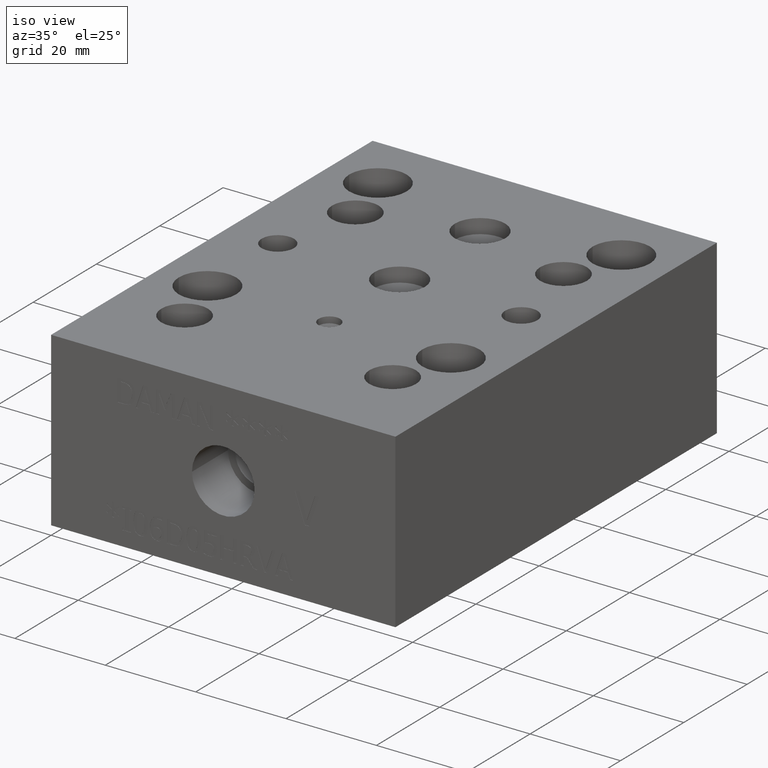
[diagram: clean part render]
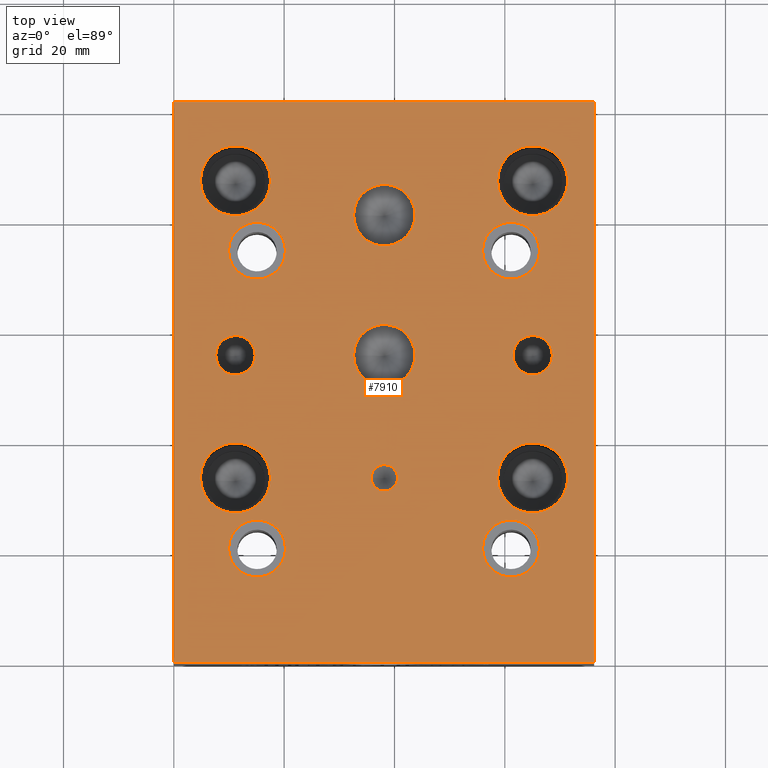
[diagram: tour spotlight — one face highlighted and labeled with its STEP entity id]
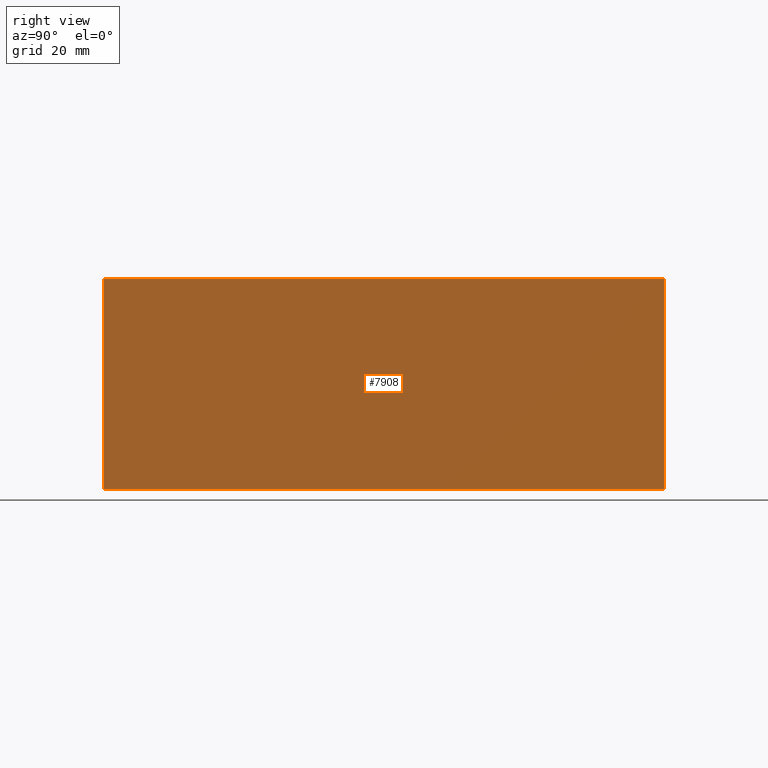
[diagram: tour spotlight — one face highlighted and labeled with its STEP entity id]
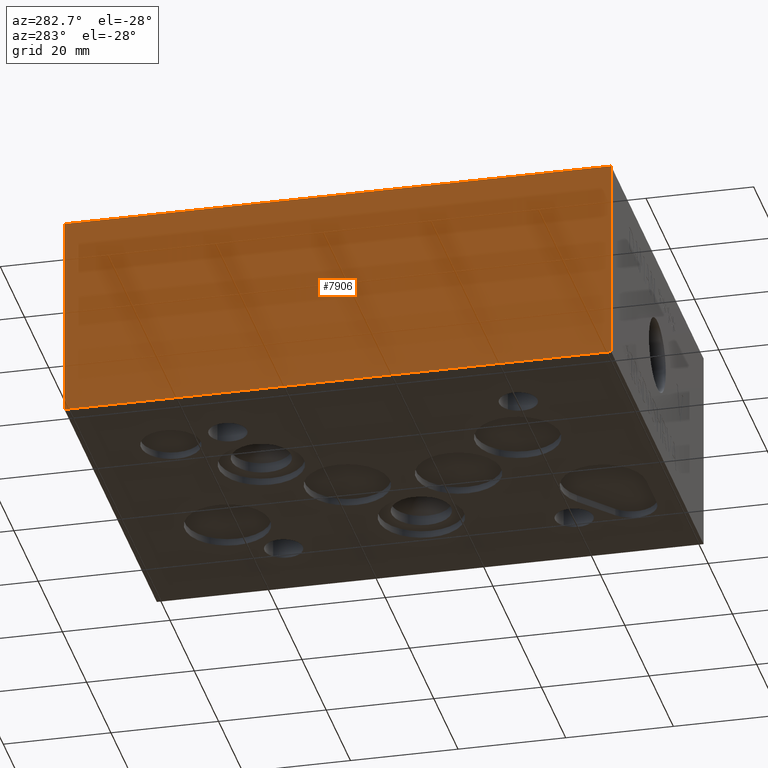
[diagram: tour spotlight — one face highlighted and labeled with its STEP entity id]
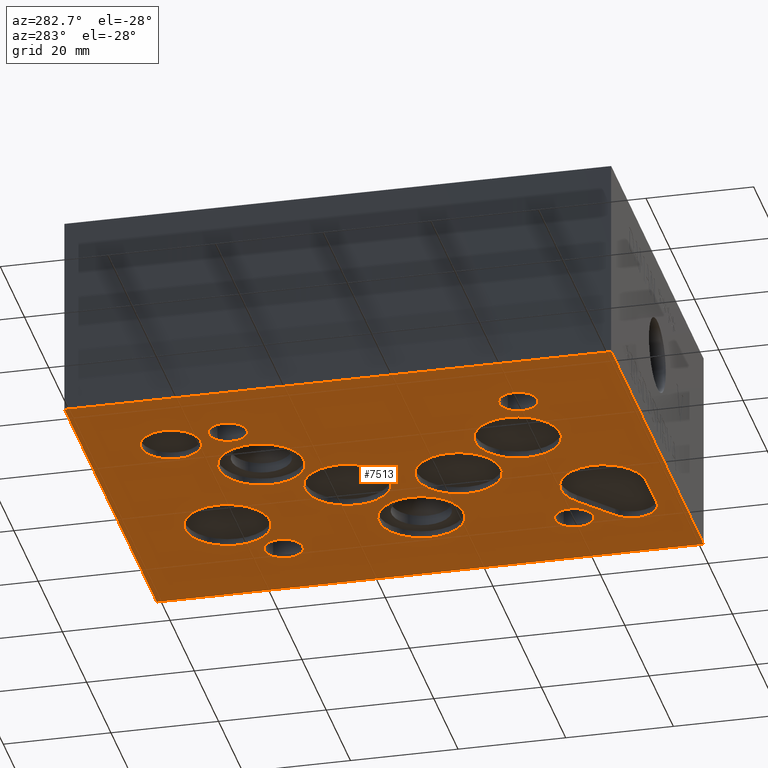
[diagram: tour spotlight — one face highlighted and labeled with its STEP entity id]
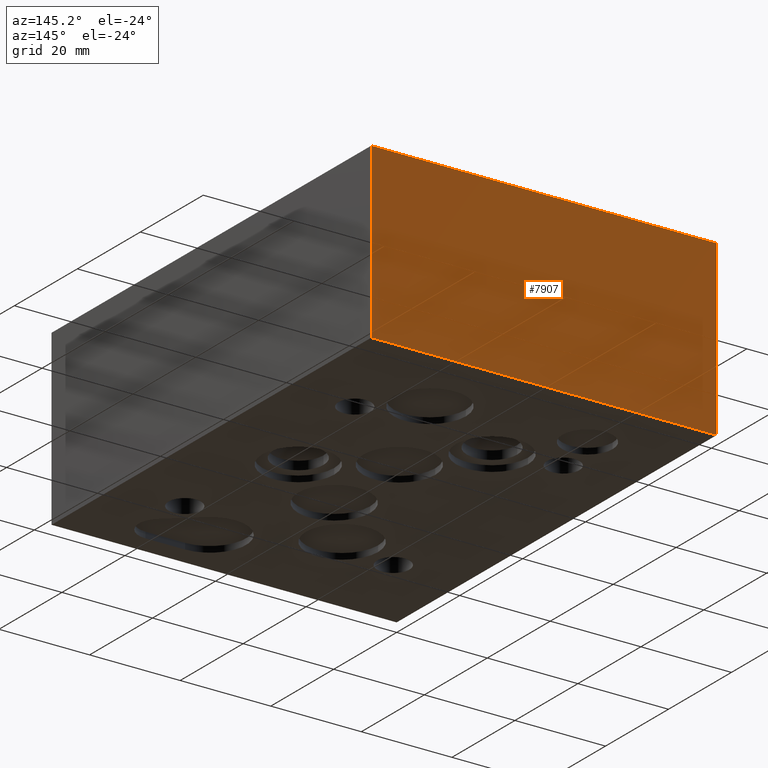
[diagram: tour spotlight — one face highlighted and labeled with its STEP entity id]
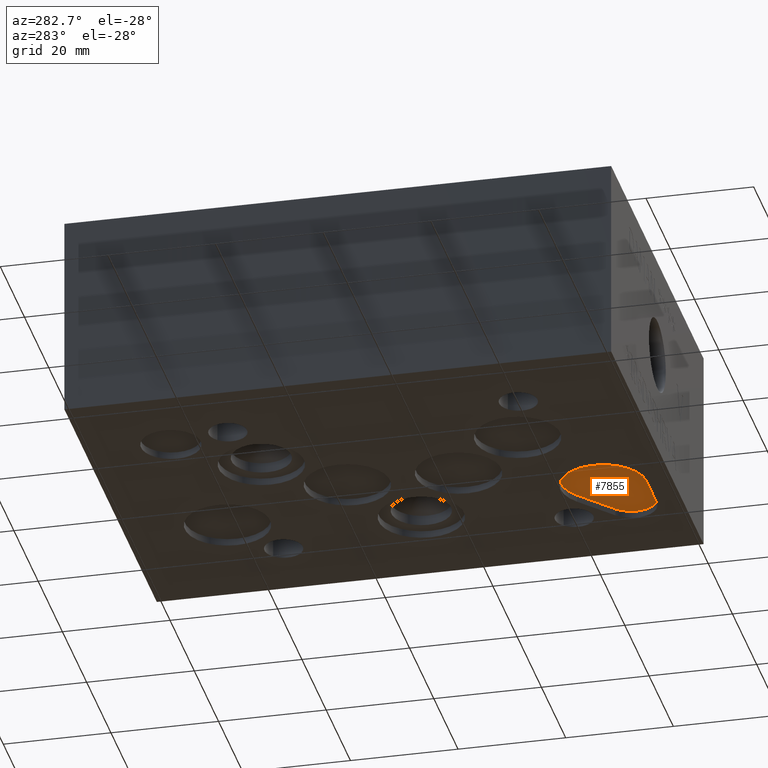
[diagram: tour spotlight — one face highlighted and labeled with its STEP entity id]
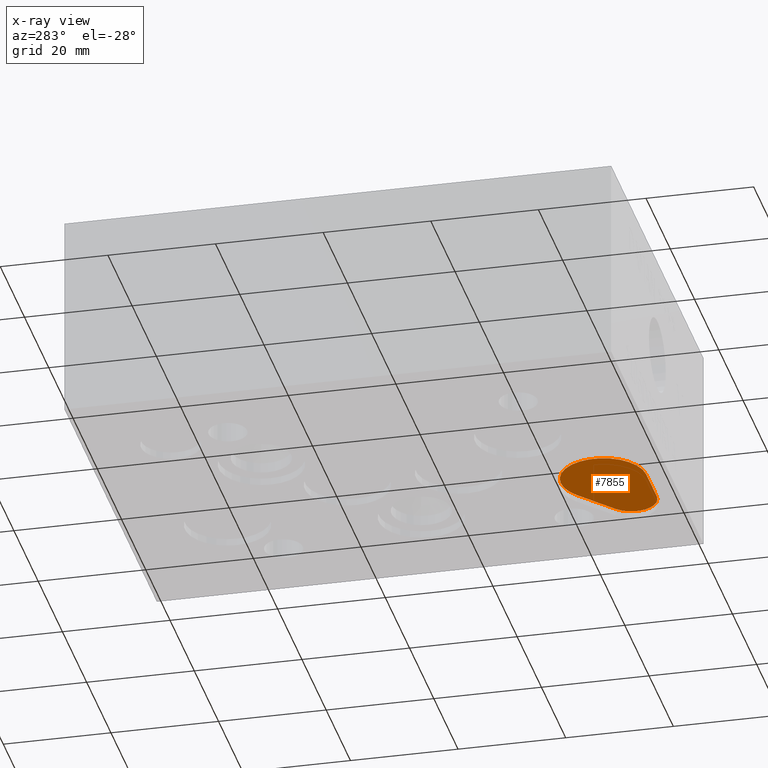
[diagram: x-ray of the same camera — body ghosted, this tour face saturated]
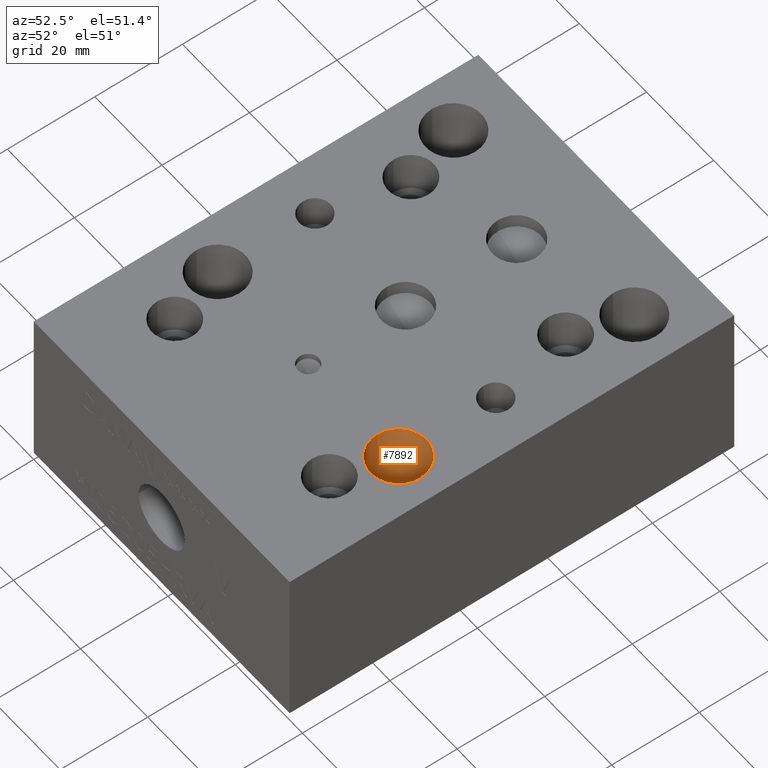
[diagram: tour spotlight — one face highlighted and labeled with its STEP entity id]
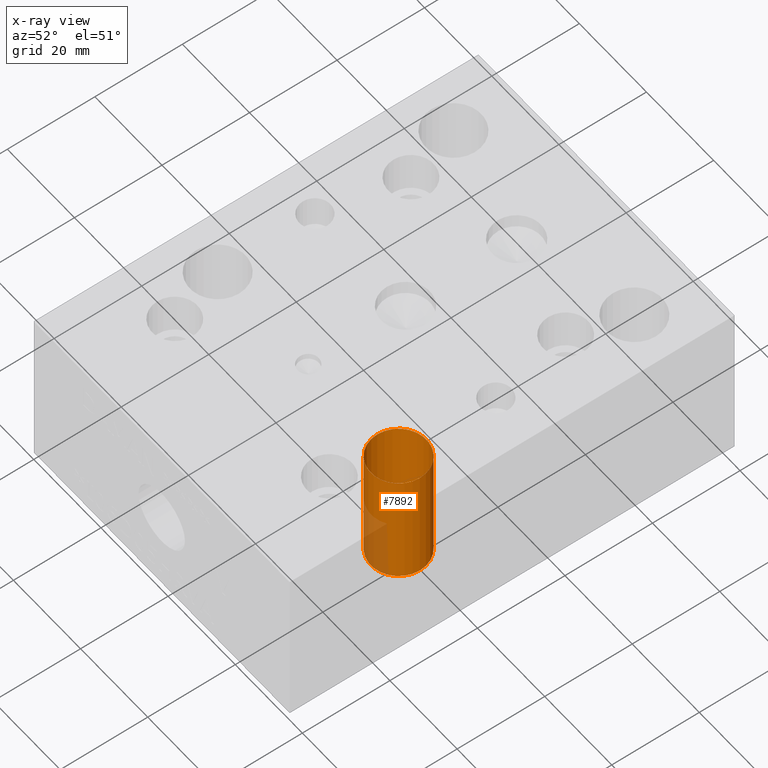
[diagram: x-ray of the same camera — body ghosted, this tour face saturated]
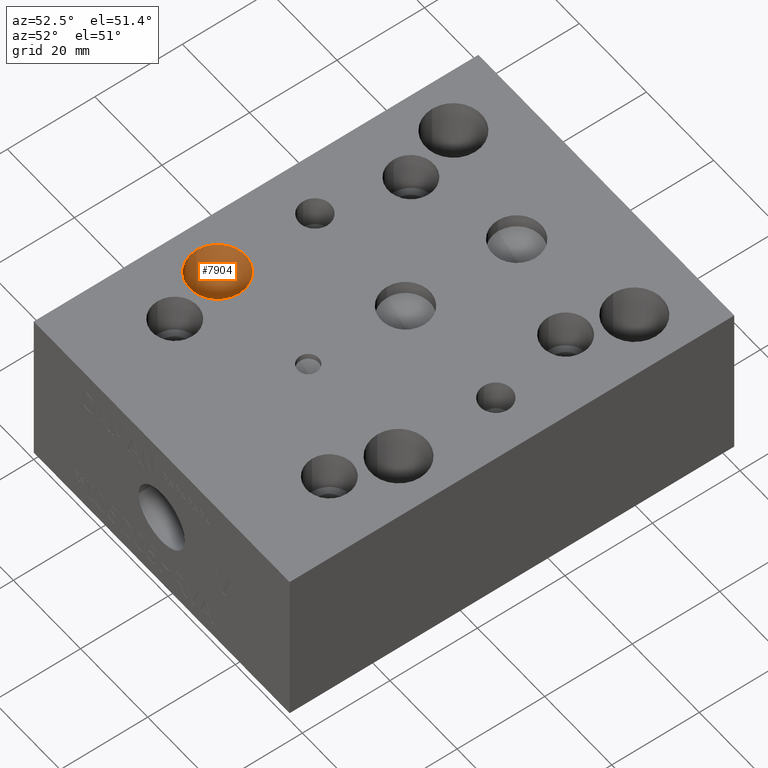
[diagram: tour spotlight — one face highlighted and labeled with its STEP entity id]
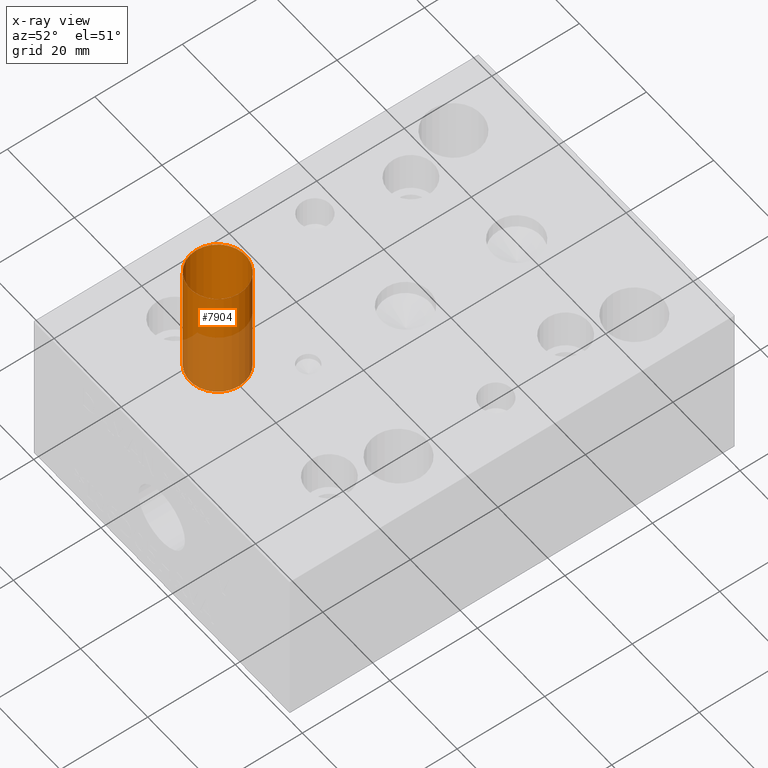
[diagram: x-ray of the same camera — body ghosted, this tour face saturated]
A machine part: a face-by-face anatomy tour. The part has 400 B-rep faces; the first image is the clean iso view, then the 8 largest visible faces are spotlighted one at a time (largest first), each with its STEP entity span.

Face 1 — top view, entity #7910. In plain terms, the highlighted planar face has unit normal (0, 0, 1).
Definition (entity closure, byte-faithful):
#634=FACE_BOUND('',#1664,.T.);
#635=FACE_BOUND('',#1665,.T.);
#636=FACE_BOUND('',#1666,.T.);
#637=FACE_BOUND('',#1667,.T.);
#638=FACE_BOUND('',#1668,.T.);
#639=FACE_BOUND('',#1669,.T.);
#640=FACE_BOUND('',#1670,.T.);
#641=FACE_BOUND('',#1671,.T.);
#642=FACE_BOUND('',#1672,.T.);
#643=FACE_BOUND('',#1673,.T.);
#644=FACE_BOUND('',#1674,.T.);
#645=FACE_BOUND('',#1675,.T.);
#646=FACE_BOUND('',#1676,.T.);
#707=CIRCLE('',#8265,5.1562);
#708=CIRCLE('',#8266,5.1562);
#712=CIRCLE('',#8273,5.1562);
#713=CIRCLE('',#8274,5.1562);
#717=CIRCLE('',#8281,5.1562);
#718=CIRCLE('',#8282,5.1562);
#722=CIRCLE('',#8289,5.1562);
#723=CIRCLE('',#8290,5.1562);
#726=CIRCLE('',#8296,2.3876);
#727=CIRCLE('',#8297,2.3876);
#730=CIRCLE('',#8302,5.5626);
#731=CIRCLE('',#8303,5.5626);
#734=CIRCLE('',#8308,5.5626);
#735=CIRCLE('',#8309,5.5626);
#738=CIRCLE('',#8314,3.5687);
#739=CIRCLE('',#8315,3.5687);
#742=CIRCLE('',#8320,3.5687);
#743=CIRCLE('',#8321,3.5687);
#749=CIRCLE('',#8330,6.35);
#750=CIRCLE('',#8331,6.35);
#756=CIRCLE('',#8341,6.35);
#757=CIRCLE('',#8342,6.35);
#763=CIRCLE('',#8352,6.35);
#764=CIRCLE('',#8353,6.35);
#770=CIRCLE('',#8363,6.35);
#771=CIRCLE('',#8364,6.35);
#1209=FACE_OUTER_BOUND('',#1663,.T.);
#1663=EDGE_LOOP('',(#7210,#7211,#7212,#7213));
#1664=EDGE_LOOP('',(#7214,#7215));
#1665=EDGE_LOOP('',(#7216,#7217));
#1666=EDGE_LOOP('',(#7218,#7219));
#1667=EDGE_LOOP('',(#7220,#7221));
#1668=EDGE_LOOP('',(#7222,#7223));
#1669=EDGE_LOOP('',(#7224,#7225));
#1670=EDGE_LOOP('',(#7226,#7227));
#1671=EDGE_LOOP('',(#7228,#7229));
#1672=EDGE_LOOP('',(#7230,#7231));
#1673=EDGE_LOOP('',(#7232,#7233));
#1674=EDGE_LOOP('',(#7234,#7235));
#1675=EDGE_LOOP('',(#7236,#7237));
#1676=EDGE_LOOP('',(#7238,#7239));
#2019=LINE('',#12018,#2814);
#2467=LINE('',#13295,#3262);
#2469=LINE('',#13299,#3264);
#2471=LINE('',#13302,#3266);
#2814=VECTOR('',#8973,10.);
#3262=VECTOR('',#10047,10.);
#3264=VECTOR('',#10051,10.);
#3266=VECTOR('',#10055,10.);
#3615=VERTEX_POINT('',#12015);
#3616=VERTEX_POINT('',#12017);
#3933=VERTEX_POINT('',#13095);
#3934=VERTEX_POINT('',#13096);
#3937=VERTEX_POINT('',#13108);
#3938=VERTEX_POINT('',#13109);
#3941=VERTEX_POINT('',#13121);
#3942=VERTEX_POINT('',#13122);
#3945=VERTEX_POINT('',#13134);
#3946=VERTEX_POINT('',#13135);
#3950=VERTEX_POINT('',#13148);
#3951=VERTEX_POINT('',#13149);
#3955=VERTEX_POINT('',#13161);
#3956=VERTEX_POINT('',#13162);
#3960=VERTEX_POINT('',#13174);
#3961=VERTEX_POINT('',#13175);
#3965=VERTEX_POINT('',#13187);
#3966=VERTEX_POINT('',#13188);
#3970=VERTEX_POINT('',#13200);
#3971=VERTEX_POINT('',#13201);
#3978=VERTEX_POINT('',#13220);
#3979=VERTEX_POINT('',#13221);
#3986=VERTEX_POINT('',#13242);
#3987=VERTEX_POINT('',#13243);
#3994=VERTEX_POINT('',#13264);
#3995=VERTEX_POINT('',#13265);
#4002=VERTEX_POINT('',#13286);
#4003=VERTEX_POINT('',#13287);
#4004=VERTEX_POINT('',#13294);
#4005=VERTEX_POINT('',#13298);
#4516=EDGE_CURVE('',#3616,#3615,#2019,.T.);
#4988=EDGE_CURVE('',#3933,#3934,#707,.T.);
#4989=EDGE_CURVE('',#3934,#3933,#708,.T.);
#4994=EDGE_CURVE('',#3937,#3938,#712,.T.);
#4995=EDGE_CURVE('',#3938,#3937,#713,.T.);
#5000=EDGE_CURVE('',#3941,#3942,#717,.T.);
#5001=EDGE_CURVE('',#3942,#3941,#718,.T.);
#5006=EDGE_CURVE('',#3945,#3946,#722,.T.);
#5007=EDGE_CURVE('',#3946,#3945,#723,.T.);
#5012=EDGE_CURVE('',#3950,#3951,#726,.T.);
#5013=EDGE_CURVE('',#3951,#3950,#727,.T.);
#5018=EDGE_CURVE('',#3955,#3956,#730,.T.);
#5019=EDGE_CURVE('',#3956,#3955,#731,.T.);
#5024=EDGE_CURVE('',#3960,#3961,#734,.T.);
#5025=EDGE_CURVE('',#3961,#3960,#735,.T.);
#5030=EDGE_CURVE('',#3965,#3966,#738,.T.);
#5031=EDGE_CURVE('',#3966,#3965,#739,.T.);
#5036=EDGE_CURVE('',#3970,#3971,#742,.T.);
#5037=EDGE_CURVE('',#3971,#3970,#743,.T.);
#5045=EDGE_CURVE('',#3978,#3979,#749,.T.);
#5046=EDGE_CURVE('',#3979,#3978,#750,.T.);
#5055=EDGE_CURVE('',#3986,#3987,#756,.T.);
#5056=EDGE_CURVE('',#3987,#3986,#757,.T.);
#5065=EDGE_CURVE('',#3994,#3995,#763,.T.);
#5066=EDGE_CURVE('',#3995,#3994,#764,.T.);
#5075=EDGE_CURVE('',#4002,#4003,#770,.T.);
#5076=EDGE_CURVE('',#4003,#4002,#771,.T.);
#5079=EDGE_CURVE('',#4004,#3616,#2467,.T.);
#5081=EDGE_CURVE('',#4005,#4004,#2469,.T.);
#5083=EDGE_CURVE('',#3615,#4005,#2471,.T.);
#7210=ORIENTED_EDGE('',*,*,#4516,.T.);
#7211=ORIENTED_EDGE('',*,*,#5083,.T.);
#7212=ORIENTED_EDGE('',*,*,#5081,.T.);
#7213=ORIENTED_EDGE('',*,*,#5079,.T.);
#7214=ORIENTED_EDGE('',*,*,#4988,.T.);
#7215=ORIENTED_EDGE('',*,*,#4989,.T.);
#7216=ORIENTED_EDGE('',*,*,#4994,.T.);
#7217=ORIENTED_EDGE('',*,*,#4995,.T.);
#7218=ORIENTED_EDGE('',*,*,#5000,.T.);
#7219=ORIENTED_EDGE('',*,*,#5001,.T.);
#7220=ORIENTED_EDGE('',*,*,#5006,.T.);
#7221=ORIENTED_EDGE('',*,*,#5007,.T.);
#7222=ORIENTED_EDGE('',*,*,#5012,.T.);
#7223=ORIENTED_EDGE('',*,*,#5013,.T.);
#7224=ORIENTED_EDGE('',*,*,#5018,.T.);
#7225=ORIENTED_EDGE('',*,*,#5019,.T.);
#7226=ORIENTED_EDGE('',*,*,#5024,.T.);
#7227=ORIENTED_EDGE('',*,*,#5025,.T.);
#7228=ORIENTED_EDGE('',*,*,#5030,.T.);
#7229=ORIENTED_EDGE('',*,*,#5031,.T.);
#7230=ORIENTED_EDGE('',*,*,#5036,.T.);
#7231=ORIENTED_EDGE('',*,*,#5037,.T.);
#7232=ORIENTED_EDGE('',*,*,#5045,.T.);
#7233=ORIENTED_EDGE('',*,*,#5046,.T.);
#7234=ORIENTED_EDGE('',*,*,#5055,.T.);
#7235=ORIENTED_EDGE('',*,*,#5056,.T.);
#7236=ORIENTED_EDGE('',*,*,#5065,.T.);
#7237=ORIENTED_EDGE('',*,*,#5066,.T.);
#7238=ORIENTED_EDGE('',*,*,#5075,.T.);
#7239=ORIENTED_EDGE('',*,*,#5076,.T.);
#7510=PLANE('',#8370);
#7910=ADVANCED_FACE('',(#1209,#634,#635,#636,#637,#638,#639,#640,#641,#642,
#643,#644,#645,#646),#7510,.T.);
#8265=AXIS2_PLACEMENT_3D('',#13097,#9817,#9818);
#8266=AXIS2_PLACEMENT_3D('',#13098,#9819,#9820);
#8273=AXIS2_PLACEMENT_3D('',#13110,#9834,#9835);
#8274=AXIS2_PLACEMENT_3D('',#13111,#9836,#9837);
#8281=AXIS2_PLACEMENT_3D('',#13123,#9851,#9852);
#8282=AXIS2_PLACEMENT_3D('',#13124,#9853,#9854);
#8289=AXIS2_PLACEMENT_3D('',#13136,#9868,#9869);
#8290=AXIS2_PLACEMENT_3D('',#13137,#9870,#9871);
#8296=AXIS2_PLACEMENT_3D('',#13150,#9884,#9885);
#8297=AXIS2_PLACEMENT_3D('',#13151,#9886,#9887);
#8302=AXIS2_PLACEMENT_3D('',#13163,#9898,#9899);
#8303=AXIS2_PLACEMENT_3D('',#13164,#9900,#9901);
#8308=AXIS2_PLACEMENT_3D('',#13176,#9912,#9913);
#8309=AXIS2_PLACEMENT_3D('',#13177,#9914,#9915);
#8314=AXIS2_PLACEMENT_3D('',#13189,#9926,#9927);
#8315=AXIS2_PLACEMENT_3D('',#13190,#9928,#9929);
#8320=AXIS2_PLACEMENT_3D('',#13202,#9940,#9941);
#8321=AXIS2_PLACEMENT_3D('',#13203,#9942,#9943);
#8330=AXIS2_PLACEMENT_3D('',#13222,#9962,#9963);
#8331=AXIS2_PLACEMENT_3D('',#13223,#9964,#9965);
#8341=AXIS2_PLACEMENT_3D('',#13244,#9987,#9988);
#8342=AXIS2_PLACEMENT_3D('',#13245,#9989,#9990);
#8352=AXIS2_PLACEMENT_3D('',#13266,#10012,#10013);
#8353=AXIS2_PLACEMENT_3D('',#13267,#10014,#10015);
#8363=AXIS2_PLACEMENT_3D('',#13288,#10037,#10038);
#8364=AXIS2_PLACEMENT_3D('',#13289,#10039,#10040);
#8370=AXIS2_PLACEMENT_3D('',#13304,#10058,#10059);
#8973=DIRECTION('',(1.,0.,0.));
#9817=DIRECTION('center_axis',(0.,0.,-1.));
#9818=DIRECTION('ref_axis',(1.,0.,0.));
#9819=DIRECTION('center_axis',(0.,0.,-1.));
#9820=DIRECTION('ref_axis',(1.,0.,0.));
#9834=DIRECTION('center_axis',(0.,0.,-1.));
#9835=DIRECTION('ref_axis',(1.,0.,0.));
#9836=DIRECTION('center_axis',(0.,0.,-1.));
#9837=DIRECTION('ref_axis',(1.,0.,0.));
#9851=DIRECTION('center_axis',(0.,0.,-1.));
#9852=DIRECTION('ref_axis',(1.,0.,0.));
#9853=DIRECTION('center_axis',(0.,0.,-1.));
#9854=DIRECTION('ref_axis',(1.,0.,0.));
#9868=DIRECTION('center_axis',(0.,0.,-1.));
#9869=DIRECTION('ref_axis',(1.,0.,0.));
#9870=DIRECTION('center_axis',(0.,0.,-1.));
#9871=DIRECTION('ref_axis',(1.,0.,0.));
#9884=DIRECTION('center_axis',(0.,0.,-1.));
#9885=DIRECTION('ref_axis',(1.,0.,0.));
#9886=DIRECTION('center_axis',(0.,0.,-1.));
#9887=DIRECTION('ref_axis',(1.,0.,0.));
#9898=DIRECTION('center_axis',(0.,0.,-1.));
#9899=DIRECTION('ref_axis',(1.,0.,0.));
#9900=DIRECTION('center_axis',(0.,0.,-1.));
#9901=DIRECTION('ref_axis',(1.,0.,0.));
#9912=DIRECTION('center_axis',(0.,0.,-1.));
#9913=DIRECTION('ref_axis',(1.,0.,0.));
#9914=DIRECTION('center_axis',(0.,0.,-1.));
#9915=DIRECTION('ref_axis',(1.,0.,0.));
#9926=DIRECTION('center_axis',(0.,0.,-1.));
#9927=DIRECTION('ref_axis',(1.,0.,0.));
#9928=DIRECTION('center_axis',(0.,0.,-1.));
#9929=DIRECTION('ref_axis',(1.,0.,0.));
#9940=DIRECTION('center_axis',(0.,0.,-1.));
#9941=DIRECTION('ref_axis',(1.,0.,0.));
#9942=DIRECTION('center_axis',(0.,0.,-1.));
#9943=DIRECTION('ref_axis',(1.,0.,0.));
#9962=DIRECTION('center_axis',(0.,0.,-1.));
#9963=DIRECTION('ref_axis',(1.,0.,0.));
#9964=DIRECTION('center_axis',(0.,0.,-1.));
#9965=DIRECTION('ref_axis',(1.,0.,0.));
#9987=DIRECTION('center_axis',(0.,0.,-1.));
#9988=DIRECTION('ref_axis',(1.,0.,0.));
#9989=DIRECTION('center_axis',(0.,0.,-1.));
#9990=DIRECTION('ref_axis',(1.,0.,0.));
#10012=DIRECTION('center_axis',(0.,0.,-1.));
#10013=DIRECTION('ref_axis',(1.,0.,0.));
#10014=DIRECTION('center_axis',(0.,0.,-1.));
#10015=DIRECTION('ref_axis',(1.,0.,0.));
#10037=DIRECTION('center_axis',(0.,0.,-1.));
#10038=DIRECTION('ref_axis',(1.,0.,0.));
#10039=DIRECTION('center_axis',(0.,0.,-1.));
#10040=DIRECTION('ref_axis',(1.,0.,0.));
#10047=DIRECTION('',(0.,-1.,0.));
#10051=DIRECTION('',(-1.,0.,0.));
#10055=DIRECTION('',(0.,1.,0.));
#10058=DIRECTION('center_axis',(0.,0.,1.));
#10059=DIRECTION('ref_axis',(1.,0.,0.));
#12015=CARTESIAN_POINT('',(76.2,0.,38.1));
#12017=CARTESIAN_POINT('',(0.,0.,38.1));
#12018=CARTESIAN_POINT('',(0.,0.,38.1));
#13095=CARTESIAN_POINT('',(20.2311,74.6252,38.1));
#13096=CARTESIAN_POINT('',(9.9187,74.6252,38.1));
#13097=CARTESIAN_POINT('Origin',(15.0749,74.6252,38.1));
#13098=CARTESIAN_POINT('Origin',(15.0749,74.6252,38.1));
#13108=CARTESIAN_POINT('',(20.2438,20.6502,38.1));
#13109=CARTESIAN_POINT('',(9.9314,20.6502,38.1));
#13110=CARTESIAN_POINT('Origin',(15.0876,20.6502,38.1));
#13111=CARTESIAN_POINT('Origin',(15.0876,20.6502,38.1));
#13121=CARTESIAN_POINT('',(66.2813,20.6502,38.1));
#13122=CARTESIAN_POINT('',(55.9689,20.6502,38.1));
#13123=CARTESIAN_POINT('Origin',(61.1251,20.6502,38.1));
#13124=CARTESIAN_POINT('Origin',(61.1251,20.6502,38.1));
#13134=CARTESIAN_POINT('',(66.2813,74.6379,38.1));
#13135=CARTESIAN_POINT('',(55.9689,74.6379,38.1));
#13136=CARTESIAN_POINT('Origin',(61.1251,74.6379,38.1));
#13137=CARTESIAN_POINT('Origin',(61.1251,74.6379,38.1));
#13148=CARTESIAN_POINT('',(40.5384,33.4518,38.1));
#13149=CARTESIAN_POINT('',(35.7632,33.4518,38.1));
#13150=CARTESIAN_POINT('Origin',(38.1508,33.4518,38.1));
#13151=CARTESIAN_POINT('Origin',(38.1508,33.4518,38.1));
#13161=CARTESIAN_POINT('',(43.7134,55.6768,38.1));
#13162=CARTESIAN_POINT('',(32.5882,55.6768,38.1));
#13163=CARTESIAN_POINT('Origin',(38.1508,55.6768,38.1));
#13164=CARTESIAN_POINT('Origin',(38.1508,55.6768,38.1));
#13174=CARTESIAN_POINT('',(43.7134,81.0768,38.1));
#13175=CARTESIAN_POINT('',(32.5882,81.0768,38.1));
#13176=CARTESIAN_POINT('Origin',(38.1508,81.0768,38.1));
#13177=CARTESIAN_POINT('Origin',(38.1508,81.0768,38.1));
#13187=CARTESIAN_POINT('',(14.7447,55.6768,38.1));
#13188=CARTESIAN_POINT('',(7.6073,55.6768,38.1));
#13189=CARTESIAN_POINT('Origin',(11.176,55.6768,38.1));
#13190=CARTESIAN_POINT('Origin',(11.176,55.6768,38.1));
#13200=CARTESIAN_POINT('',(68.6181,55.6768,38.1));
#13201=CARTESIAN_POINT('',(61.4807,55.6768,38.1));
#13202=CARTESIAN_POINT('Origin',(65.0494,55.6768,38.1));
#13203=CARTESIAN_POINT('Origin',(65.0494,55.6768,38.1));
#13220=CARTESIAN_POINT('',(71.3994,33.4518,38.1));
#13221=CARTESIAN_POINT('',(58.6994,33.4518,38.1));
#13222=CARTESIAN_POINT('Origin',(65.0494,33.4518,38.1));
#13223=CARTESIAN_POINT('Origin',(65.0494,33.4518,38.1));
#13242=CARTESIAN_POINT('',(17.526,87.3252,38.1));
#13243=CARTESIAN_POINT('',(4.826,87.3252,38.1));
#13244=CARTESIAN_POINT('Origin',(11.176,87.3252,38.1));
#13245=CARTESIAN_POINT('Origin',(11.176,87.3252,38.1));
#13264=CARTESIAN_POINT('',(71.3994,87.3252,38.1));
#13265=CARTESIAN_POINT('',(58.6994,87.3252,38.1));
#13266=CARTESIAN_POINT('Origin',(65.0494,87.3252,38.1));
#13267=CARTESIAN_POINT('Origin',(65.0494,87.3252,38.1));
#13286=CARTESIAN_POINT('',(17.526,33.4518,38.1));
#13287=CARTESIAN_POINT('',(4.826,33.4518,38.1));
#13288=CARTESIAN_POINT('Origin',(11.176,33.4518,38.1));
#13289=CARTESIAN_POINT('Origin',(11.176,33.4518,38.1));
#13294=CARTESIAN_POINT('',(0.,101.6,38.1));
#13295=CARTESIAN_POINT('',(0.,101.6,38.1));
#13298=CARTESIAN_POINT('',(76.2,101.6,38.1));
#13299=CARTESIAN_POINT('',(76.2,101.6,38.1));
#13302=CARTESIAN_POINT('',(76.2,0.,38.1));
#13304=CARTESIAN_POINT('Origin',(38.1,50.8,38.1));

Face 2 — right view, entity #7908. In plain terms, the highlighted planar face has unit normal (1, 0, 0).
Definition (entity closure, byte-faithful):
#1207=FACE_OUTER_BOUND('',#1661,.T.);
#1661=EDGE_LOOP('',(#7203,#7204,#7205,#7206));
#1685=LINE('',#10084,#2480);
#2018=LINE('',#12016,#2813);
#2470=LINE('',#13300,#3265);
#2471=LINE('',#13302,#3266);
#2480=VECTOR('',#8391,10.);
#2813=VECTOR('',#8972,10.);
#3265=VECTOR('',#10052,10.);
#3266=VECTOR('',#10055,10.);
#3274=VERTEX_POINT('',#10078);
#3276=VERTEX_POINT('',#10082);
#3615=VERTEX_POINT('',#12015);
#4005=VERTEX_POINT('',#13298);
#4016=EDGE_CURVE('',#3274,#3276,#1685,.T.);
#4515=EDGE_CURVE('',#3274,#3615,#2018,.T.);
#5082=EDGE_CURVE('',#3276,#4005,#2470,.T.);
#5083=EDGE_CURVE('',#3615,#4005,#2471,.T.);
#7203=ORIENTED_EDGE('',*,*,#4016,.T.);
#7204=ORIENTED_EDGE('',*,*,#5082,.T.);
#7205=ORIENTED_EDGE('',*,*,#5083,.F.);
#7206=ORIENTED_EDGE('',*,*,#4515,.F.);
#7508=PLANE('',#8368);
#7908=ADVANCED_FACE('',(#1207),#7508,.T.);
#8368=AXIS2_PLACEMENT_3D('',#13301,#10053,#10054);
#8391=DIRECTION('',(0.,1.,0.));
#8972=DIRECTION('',(0.,0.,1.));
#10052=DIRECTION('',(0.,0.,1.));
#10053=DIRECTION('center_axis',(1.,0.,0.));
#10054=DIRECTION('ref_axis',(0.,1.,0.));
#10055=DIRECTION('',(0.,1.,0.));
#10078=CARTESIAN_POINT('',(76.2,0.,0.));
#10082=CARTESIAN_POINT('',(76.2,101.6,0.));
#10084=CARTESIAN_POINT('',(76.2,0.,0.));
#12015=CARTESIAN_POINT('',(76.2,0.,38.1));
#12016=CARTESIAN_POINT('',(76.2,0.,0.));
#13298=CARTESIAN_POINT('',(76.2,101.6,38.1));
#13300=CARTESIAN_POINT('',(76.2,101.6,0.));
#13301=CARTESIAN_POINT('Origin',(76.2,0.,0.));
#13302=CARTESIAN_POINT('',(76.2,0.,38.1));

Face 3 — auxiliary view, entity #7906. In plain terms, the highlighted planar face has unit normal (-1, 0, 0).
Definition (entity closure, byte-faithful):
#1205=FACE_OUTER_BOUND('',#1659,.T.);
#1659=EDGE_LOOP('',(#7195,#7196,#7197,#7198));
#1683=LINE('',#10081,#2478);
#2020=LINE('',#12019,#2815);
#2467=LINE('',#13295,#3262);
#2468=LINE('',#13296,#3263);
#2478=VECTOR('',#8389,10.);
#2815=VECTOR('',#8974,10.);
#3262=VECTOR('',#10047,10.);
#3263=VECTOR('',#10048,10.);
#3273=VERTEX_POINT('',#10077);
#3275=VERTEX_POINT('',#10080);
#3616=VERTEX_POINT('',#12017);
#4004=VERTEX_POINT('',#13294);
#4014=EDGE_CURVE('',#3275,#3273,#1683,.T.);
#4517=EDGE_CURVE('',#3273,#3616,#2020,.T.);
#5079=EDGE_CURVE('',#4004,#3616,#2467,.T.);
#5080=EDGE_CURVE('',#3275,#4004,#2468,.T.);
#7195=ORIENTED_EDGE('',*,*,#4014,.T.);
#7196=ORIENTED_EDGE('',*,*,#4517,.T.);
#7197=ORIENTED_EDGE('',*,*,#5079,.F.);
#7198=ORIENTED_EDGE('',*,*,#5080,.F.);
#7506=PLANE('',#8366);
#7906=ADVANCED_FACE('',(#1205),#7506,.T.);
#8366=AXIS2_PLACEMENT_3D('',#13293,#10045,#10046);
#8389=DIRECTION('',(0.,-1.,0.));
#8974=DIRECTION('',(0.,0.,1.));
#10045=DIRECTION('center_axis',(-1.,0.,0.));
#10046=DIRECTION('ref_axis',(0.,-1.,0.));
#10047=DIRECTION('',(0.,-1.,0.));
#10048=DIRECTION('',(0.,0.,1.));
#10077=CARTESIAN_POINT('',(0.,0.,0.));
#10080=CARTESIAN_POINT('',(0.,101.6,0.));
#10081=CARTESIAN_POINT('',(0.,101.6,0.));
#12017=CARTESIAN_POINT('',(0.,0.,38.1));
#12019=CARTESIAN_POINT('',(0.,0.,0.));
#13293=CARTESIAN_POINT('Origin',(0.,101.6,0.));
#13294=CARTESIAN_POINT('',(0.,101.6,38.1));
#13295=CARTESIAN_POINT('',(0.,101.6,38.1));
#13296=CARTESIAN_POINT('',(0.,101.6,0.));

Face 4 — auxiliary view, entity #7513. In plain terms, the highlighted planar face has unit normal (0, 0, 1).
Definition (entity closure, byte-faithful):
#580=FACE_BOUND('',#1213,.T.);
#581=FACE_BOUND('',#1214,.T.);
#582=FACE_BOUND('',#1215,.T.);
#583=FACE_BOUND('',#1216,.T.);
#584=FACE_BOUND('',#1217,.T.);
#585=FACE_BOUND('',#1218,.T.);
#586=FACE_BOUND('',#1219,.T.);
#587=FACE_BOUND('',#1220,.T.);
#588=FACE_BOUND('',#1221,.T.);
#589=FACE_BOUND('',#1222,.T.);
#590=FACE_BOUND('',#1223,.T.);
#591=FACE_BOUND('',#1224,.T.);
#647=CIRCLE('',#7927,7.9375);
#649=CIRCLE('',#7930,3.5687);
#650=CIRCLE('',#7931,3.5687);
#651=CIRCLE('',#7932,3.5687);
#652=CIRCLE('',#7933,3.5687);
#653=CIRCLE('',#7934,3.5687);
#654=CIRCLE('',#7935,3.5687);
#655=CIRCLE('',#7936,3.5687);
#656=CIRCLE('',#7937,3.5687);
#657=CIRCLE('',#7938,7.9375);
#658=CIRCLE('',#7939,7.9375);
#659=CIRCLE('',#7940,7.9375);
#660=CIRCLE('',#7941,7.9375);
#661=CIRCLE('',#7942,7.9375);
#662=CIRCLE('',#7943,7.9375);
#663=CIRCLE('',#7944,7.9375);
#664=CIRCLE('',#7945,7.9375);
#665=CIRCLE('',#7946,7.9375);
#666=CIRCLE('',#7947,7.9375);
#667=CIRCLE('',#7948,7.9375);
#668=CIRCLE('',#7949,7.9375);
#669=CIRCLE('',#7950,5.5626);
#670=CIRCLE('',#7951,5.5626);
#671=CIRCLE('',#7952,4.7625);
#812=FACE_OUTER_BOUND('',#1212,.T.);
#1212=EDGE_LOOP('',(#5092,#5093,#5094,#5095));
#1213=EDGE_LOOP('',(#5096,#5097));
#1214=EDGE_LOOP('',(#5098,#5099));
#1215=EDGE_LOOP('',(#5100,#5101));
#1216=EDGE_LOOP('',(#5102,#5103));
#1217=EDGE_LOOP('',(#5104,#5105));
#1218=EDGE_LOOP('',(#5106,#5107));
#1219=EDGE_LOOP('',(#5108,#5109));
#1220=EDGE_LOOP('',(#5110,#5111));
#1221=EDGE_LOOP('',(#5112,#5113));
#1222=EDGE_LOOP('',(#5114,#5115));
#1223=EDGE_LOOP('',(#5116,#5117));
#1224=EDGE_LOOP('',(#5118,#5119,#5120,#5121));
#1677=LINE('',#10064,#2472);
#1682=LINE('',#10079,#2477);
#1683=LINE('',#10081,#2478);
#1684=LINE('',#10083,#2479);
#1685=LINE('',#10084,#2480);
#1686=LINE('',#10131,#2481);
#2472=VECTOR('',#8375,10.);
#2477=VECTOR('',#8388,10.);
#2478=VECTOR('',#8389,10.);
#2479=VECTOR('',#8390,10.);
#2480=VECTOR('',#8391,10.);
#2481=VECTOR('',#8438,10.);
#3267=VERTEX_POINT('',#10062);
#3268=VERTEX_POINT('',#10063);
#3271=VERTEX_POINT('',#10071);
#3273=VERTEX_POINT('',#10077);
#3274=VERTEX_POINT('',#10078);
#3275=VERTEX_POINT('',#10080);
#3276=VERTEX_POINT('',#10082);
#3277=VERTEX_POINT('',#10085);
#3278=VERTEX_POINT('',#10086);
#3279=VERTEX_POINT('',#10089);
#3280=VERTEX_POINT('',#10090);
#3281=VERTEX_POINT('',#10093);
#3282=VERTEX_POINT('',#10094);
#3283=VERTEX_POINT('',#10097);
#3284=VERTEX_POINT('',#10098);
#3285=VERTEX_POINT('',#10101);
#3286=VERTEX_POINT('',#10102);
#3287=VERTEX_POINT('',#10105);
#3288=VERTEX_POINT('',#10106);
#3289=VERTEX_POINT('',#10109);
#3290=VERTEX_POINT('',#10110);
#3291=VERTEX_POINT('',#10113);
#3292=VERTEX_POINT('',#10114);
#3293=VERTEX_POINT('',#10117);
#3294=VERTEX_POINT('',#10118);
#3295=VERTEX_POINT('',#10121);
#3296=VERTEX_POINT('',#10122);
#3297=VERTEX_POINT('',#10125);
#3298=VERTEX_POINT('',#10126);
#3299=VERTEX_POINT('',#10129);
#4006=EDGE_CURVE('',#3267,#3268,#1677,.T.);
#4010=EDGE_CURVE('',#3271,#3267,#647,.T.);
#4013=EDGE_CURVE('',#3273,#3274,#1682,.T.);
#4014=EDGE_CURVE('',#3275,#3273,#1683,.T.);
#4015=EDGE_CURVE('',#3276,#3275,#1684,.T.);
#4016=EDGE_CURVE('',#3274,#3276,#1685,.T.);
#4017=EDGE_CURVE('',#3277,#3278,#649,.T.);
#4018=EDGE_CURVE('',#3278,#3277,#650,.T.);
#4019=EDGE_CURVE('',#3279,#3280,#651,.T.);
#4020=EDGE_CURVE('',#3280,#3279,#652,.T.);
#4021=EDGE_CURVE('',#3281,#3282,#653,.T.);
#4022=EDGE_CURVE('',#3282,#3281,#654,.T.);
#4023=EDGE_CURVE('',#3283,#3284,#655,.T.);
#4024=EDGE_CURVE('',#3284,#3283,#656,.T.);
#4025=EDGE_CURVE('',#3285,#3286,#657,.T.);
#4026=EDGE_CURVE('',#3286,#3285,#658,.T.);
#4027=EDGE_CURVE('',#3287,#3288,#659,.T.);
#4028=EDGE_CURVE('',#3288,#3287,#660,.T.);
#4029=EDGE_CURVE('',#3289,#3290,#661,.T.);
#4030=EDGE_CURVE('',#3290,#3289,#662,.T.);
#4031=EDGE_CURVE('',#3291,#3292,#663,.T.);
#4032=EDGE_CURVE('',#3292,#3291,#664,.T.);
#4033=EDGE_CURVE('',#3293,#3294,#665,.T.);
#4034=EDGE_CURVE('',#3294,#3293,#666,.T.);
#4035=EDGE_CURVE('',#3295,#3296,#667,.T.);
#4036=EDGE_CURVE('',#3296,#3295,#668,.T.);
#4037=EDGE_CURVE('',#3297,#3298,#669,.T.);
#4038=EDGE_CURVE('',#3298,#3297,#670,.T.);
#4039=EDGE_CURVE('',#3268,#3299,#671,.T.);
#4040=EDGE_CURVE('',#3299,#3271,#1686,.T.);
#5092=ORIENTED_EDGE('',*,*,#4013,.F.);
#5093=ORIENTED_EDGE('',*,*,#4014,.F.);
#5094=ORIENTED_EDGE('',*,*,#4015,.F.);
#5095=ORIENTED_EDGE('',*,*,#4016,.F.);
#5096=ORIENTED_EDGE('',*,*,#4017,.T.);
#5097=ORIENTED_EDGE('',*,*,#4018,.T.);
#5098=ORIENTED_EDGE('',*,*,#4019,.T.);
#5099=ORIENTED_EDGE('',*,*,#4020,.T.);
#5100=ORIENTED_EDGE('',*,*,#4021,.T.);
#5101=ORIENTED_EDGE('',*,*,#4022,.T.);
#5102=ORIENTED_EDGE('',*,*,#4023,.T.);
#5103=ORIENTED_EDGE('',*,*,#4024,.T.);
#5104=ORIENTED_EDGE('',*,*,#4025,.T.);
#5105=ORIENTED_EDGE('',*,*,#4026,.T.);
#5106=ORIENTED_EDGE('',*,*,#4027,.T.);
#5107=ORIENTED_EDGE('',*,*,#4028,.T.);
#5108=ORIENTED_EDGE('',*,*,#4029,.T.);
#5109=ORIENTED_EDGE('',*,*,#4030,.T.);
#5110=ORIENTED_EDGE('',*,*,#4031,.T.);
#5111=ORIENTED_EDGE('',*,*,#4032,.T.);
#5112=ORIENTED_EDGE('',*,*,#4033,.T.);
#5113=ORIENTED_EDGE('',*,*,#4034,.T.);
#5114=ORIENTED_EDGE('',*,*,#4035,.T.);
#5115=ORIENTED_EDGE('',*,*,#4036,.T.);
#5116=ORIENTED_EDGE('',*,*,#4037,.T.);
#5117=ORIENTED_EDGE('',*,*,#4038,.T.);
#5118=ORIENTED_EDGE('',*,*,#4006,.T.);
#5119=ORIENTED_EDGE('',*,*,#4039,.T.);
#5120=ORIENTED_EDGE('',*,*,#4040,.T.);
#5121=ORIENTED_EDGE('',*,*,#4010,.T.);
#7241=PLANE('',#7929);
#7513=ADVANCED_FACE('',(#812,#580,#581,#582,#583,#584,#585,#586,#587,#588,
#589,#590,#591),#7241,.F.);
#7927=AXIS2_PLACEMENT_3D('',#10072,#8381,#8382);
#7929=AXIS2_PLACEMENT_3D('',#10076,#8386,#8387);
#7930=AXIS2_PLACEMENT_3D('',#10087,#8392,#8393);
#7931=AXIS2_PLACEMENT_3D('',#10088,#8394,#8395);
#7932=AXIS2_PLACEMENT_3D('',#10091,#8396,#8397);
#7933=AXIS2_PLACEMENT_3D('',#10092,#8398,#8399);
#7934=AXIS2_PLACEMENT_3D('',#10095,#8400,#8401);
#7935=AXIS2_PLACEMENT_3D('',#10096,#8402,#8403);
#7936=AXIS2_PLACEMENT_3D('',#10099,#8404,#8405);
#7937=AXIS2_PLACEMENT_3D('',#10100,#8406,#8407);
#7938=AXIS2_PLACEMENT_3D('',#10103,#8408,#8409);
#7939=AXIS2_PLACEMENT_3D('',#10104,#8410,#8411);
#7940=AXIS2_PLACEMENT_3D('',#10107,#8412,#8413);
#7941=AXIS2_PLACEMENT_3D('',#10108,#8414,#8415);
#7942=AXIS2_PLACEMENT_3D('',#10111,#8416,#8417);
#7943=AXIS2_PLACEMENT_3D('',#10112,#8418,#8419);
#7944=AXIS2_PLACEMENT_3D('',#10115,#8420,#8421);
#7945=AXIS2_PLACEMENT_3D('',#10116,#8422,#8423);
#7946=AXIS2_PLACEMENT_3D('',#10119,#8424,#8425);
#7947=AXIS2_PLACEMENT_3D('',#10120,#8426,#8427);
#7948=AXIS2_PLACEMENT_3D('',#10123,#8428,#8429);
#7949=AXIS2_PLACEMENT_3D('',#10124,#8430,#8431);
#7950=AXIS2_PLACEMENT_3D('',#10127,#8432,#8433);
#7951=AXIS2_PLACEMENT_3D('',#10128,#8434,#8435);
#7952=AXIS2_PLACEMENT_3D('',#10130,#8436,#8437);
#8375=DIRECTION('',(0.999998938083282,-0.00145733740364959,0.));
#8381=DIRECTION('center_axis',(0.,0.,1.));
#8382=DIRECTION('ref_axis',(1.,0.,0.));
#8386=DIRECTION('center_axis',(0.,0.,1.));
#8387=DIRECTION('ref_axis',(1.,0.,0.));
#8388=DIRECTION('',(1.,0.,0.));
#8389=DIRECTION('',(0.,-1.,0.));
#8390=DIRECTION('',(-1.,0.,0.));
#8391=DIRECTION('',(0.,1.,0.));
#8392=DIRECTION('center_axis',(0.,0.,1.));
#8393=DIRECTION('ref_axis',(1.,0.,0.));
#8394=DIRECTION('center_axis',(0.,0.,1.));
#8395=DIRECTION('ref_axis',(1.,0.,0.));
#8396=DIRECTION('center_axis',(0.,0.,1.));
#8397=DIRECTION('ref_axis',(1.,0.,0.));
#8398=DIRECTION('center_axis',(0.,0.,1.));
#8399=DIRECTION('ref_axis',(1.,0.,0.));
#8400=DIRECTION('center_axis',(0.,0.,1.));
#8401=DIRECTION('ref_axis',(1.,0.,0.));
#8402=DIRECTION('center_axis',(0.,0.,1.));
#8403=DIRECTION('ref_axis',(1.,0.,0.));
#8404=DIRECTION('center_axis',(0.,0.,1.));
#8405=DIRECTION('ref_axis',(1.,0.,0.));
#8406=DIRECTION('center_axis',(0.,0.,1.));
#8407=DIRECTION('ref_axis',(1.,0.,0.));
#8408=DIRECTION('center_axis',(0.,0.,1.));
#8409=DIRECTION('ref_axis',(1.,0.,0.));
#8410=DIRECTION('center_axis',(0.,0.,1.));
#8411=DIRECTION('ref_axis',(1.,0.,0.));
#8412=DIRECTION('center_axis',(0.,0.,1.));
#8413=DIRECTION('ref_axis',(1.,0.,0.));
#8414=DIRECTION('center_axis',(0.,0.,1.));
#8415=DIRECTION('ref_axis',(1.,0.,0.));
#8416=DIRECTION('center_axis',(0.,0.,1.));
#8417=DIRECTION('ref_axis',(1.,0.,0.));
#8418=DIRECTION('center_axis',(0.,0.,1.));
#8419=DIRECTION('ref_axis',(1.,0.,0.));
#8420=DIRECTION('center_axis',(0.,0.,1.));
#8421=DIRECTION('ref_axis',(1.,0.,0.));
#8422=DIRECTION('center_axis',(0.,0.,1.));
#8423=DIRECTION('ref_axis',(1.,0.,0.));
#8424=DIRECTION('center_axis',(0.,0.,1.));
#8425=DIRECTION('ref_axis',(1.,0.,0.));
#8426=DIRECTION('center_axis',(0.,0.,1.));
#8427=DIRECTION('ref_axis',(1.,0.,0.));
#8428=DIRECTION('center_axis',(0.,0.,1.));
#8429=DIRECTION('ref_axis',(1.,0.,0.));
#8430=DIRECTION('center_axis',(0.,0.,1.));
#8431=DIRECTION('ref_axis',(1.,0.,0.));
#8432=DIRECTION('center_axis',(0.,0.,1.));
#8433=DIRECTION('ref_axis',(1.,0.,0.));
#8434=DIRECTION('center_axis',(0.,0.,1.));
#8435=DIRECTION('ref_axis',(1.,0.,0.));
#8436=DIRECTION('center_axis',(0.,0.,1.));
#8437=DIRECTION('ref_axis',(-1.,0.,0.));
#8438=DIRECTION('',(-0.764802713216951,0.644264549588125,0.));
#10062=CARTESIAN_POINT('',(50.0264323843585,4.77520842896395,0.));
#10063=CARTESIAN_POINT('',(58.7432594306151,4.76250505737837,0.));
#10064=CARTESIAN_POINT('',(44.029692067538,4.78394771220801,0.));
#10071=CARTESIAN_POINT('',(55.1518498623557,18.7833215361595,0.));
#10072=CARTESIAN_POINT('Origin',(50.038,12.7127,0.));
#10076=CARTESIAN_POINT('Origin',(38.1,50.8,0.));
#10077=CARTESIAN_POINT('',(0.,0.,0.));
#10078=CARTESIAN_POINT('',(76.2,0.,0.));
#10079=CARTESIAN_POINT('',(0.,0.,0.));
#10080=CARTESIAN_POINT('',(0.,101.6,0.));
#10081=CARTESIAN_POINT('',(0.,101.6,0.));
#10082=CARTESIAN_POINT('',(76.2,101.6,0.));
#10083=CARTESIAN_POINT('',(76.2,101.6,0.));
#10084=CARTESIAN_POINT('',(76.2,0.,0.));
#10085=CARTESIAN_POINT('',(58.6048250273683,72.1112750273683,0.));
#10086=CARTESIAN_POINT('',(63.6517249726317,77.1581749726317,0.));
#10087=CARTESIAN_POINT('Origin',(61.13145,74.63155,0.));
#10088=CARTESIAN_POINT('Origin',(61.1251,74.6379,0.));
#10089=CARTESIAN_POINT('',(58.6048250273674,18.1235750273692,0.));
#10090=CARTESIAN_POINT('',(63.6517249726326,23.1704749726308,0.));
#10091=CARTESIAN_POINT('Origin',(61.13145,20.64385,0.));
#10092=CARTESIAN_POINT('Origin',(61.1251,20.6502,0.));
#10093=CARTESIAN_POINT('',(12.5673250273674,18.1235750273692,0.));
#10094=CARTESIAN_POINT('',(17.6142249726326,23.1704749726308,0.));
#10095=CARTESIAN_POINT('Origin',(15.09395,20.64385,0.));
#10096=CARTESIAN_POINT('Origin',(15.0876,20.6502,0.));
#10097=CARTESIAN_POINT('',(12.554625027367,72.0985750273696,0.));
#10098=CARTESIAN_POINT('',(17.601524972633,77.1454749726304,0.));
#10099=CARTESIAN_POINT('Origin',(15.08125,74.61885,0.));
#10100=CARTESIAN_POINT('Origin',(15.0749,74.6252,0.));
#10101=CARTESIAN_POINT('',(57.9755,82.5627,0.));
#10102=CARTESIAN_POINT('',(42.1005,82.5627,0.));
#10103=CARTESIAN_POINT('Origin',(50.038,82.5627,0.));
#10104=CARTESIAN_POINT('Origin',(50.038,82.5627,0.));
#10105=CARTESIAN_POINT('',(36.53155,71.44385,0.));
#10106=CARTESIAN_POINT('',(20.65655,71.44385,0.));
#10107=CARTESIAN_POINT('Origin',(28.59405,71.44385,0.));
#10108=CARTESIAN_POINT('Origin',(28.59405,71.44385,0.));
#10109=CARTESIAN_POINT('',(62.74435,47.61865,0.));
#10110=CARTESIAN_POINT('',(46.86935,47.61865,0.));
#10111=CARTESIAN_POINT('Origin',(54.80685,47.61865,0.));
#10112=CARTESIAN_POINT('Origin',(54.80685,47.61865,0.));
#10113=CARTESIAN_POINT('',(36.53155,23.81885,0.));
#10114=CARTESIAN_POINT('',(20.65655,23.81885,0.));
#10115=CARTESIAN_POINT('Origin',(28.59405,23.81885,0.));
#10116=CARTESIAN_POINT('Origin',(28.59405,23.81885,0.));
#10117=CARTESIAN_POINT('',(47.65675,37.30625,0.));
#10118=CARTESIAN_POINT('',(31.78175,37.30625,0.));
#10119=CARTESIAN_POINT('Origin',(39.71925,37.30625,0.));
#10120=CARTESIAN_POINT('Origin',(39.71925,37.30625,0.));
#10121=CARTESIAN_POINT('',(47.63135,57.95645,0.));
#10122=CARTESIAN_POINT('',(31.75635,57.95645,0.));
#10123=CARTESIAN_POINT('Origin',(39.69385,57.95645,0.));
#10124=CARTESIAN_POINT('Origin',(39.69385,57.95645,0.));
#10125=CARTESIAN_POINT('',(23.03145,85.74405,0.));
#10126=CARTESIAN_POINT('',(11.90625,85.74405,0.));
#10127=CARTESIAN_POINT('Origin',(17.46885,85.74405,0.));
#10128=CARTESIAN_POINT('Origin',(17.46885,85.74405,0.));
#10129=CARTESIAN_POINT('',(61.8185099174135,13.1673729216957,0.));
#10130=CARTESIAN_POINT('Origin',(58.7502,9.525,0.));
#10131=CARTESIAN_POINT('',(45.6102952376016,26.8210615787264,0.));

Face 5 — auxiliary view, entity #7907. In plain terms, the highlighted planar face has unit normal (0, 1, 0).
Definition (entity closure, byte-faithful):
#1206=FACE_OUTER_BOUND('',#1660,.T.);
#1660=EDGE_LOOP('',(#7199,#7200,#7201,#7202));
#1684=LINE('',#10083,#2479);
#2468=LINE('',#13296,#3263);
#2469=LINE('',#13299,#3264);
#2470=LINE('',#13300,#3265);
#2479=VECTOR('',#8390,10.);
#3263=VECTOR('',#10048,10.);
#3264=VECTOR('',#10051,10.);
#3265=VECTOR('',#10052,10.);
#3275=VERTEX_POINT('',#10080);
#3276=VERTEX_POINT('',#10082);
#4004=VERTEX_POINT('',#13294);
#4005=VERTEX_POINT('',#13298);
#4015=EDGE_CURVE('',#3276,#3275,#1684,.T.);
#5080=EDGE_CURVE('',#3275,#4004,#2468,.T.);
#5081=EDGE_CURVE('',#4005,#4004,#2469,.T.);
#5082=EDGE_CURVE('',#3276,#4005,#2470,.T.);
#7199=ORIENTED_EDGE('',*,*,#4015,.T.);
#7200=ORIENTED_EDGE('',*,*,#5080,.T.);
#7201=ORIENTED_EDGE('',*,*,#5081,.F.);
#7202=ORIENTED_EDGE('',*,*,#5082,.F.);
#7507=PLANE('',#8367);
#7907=ADVANCED_FACE('',(#1206),#7507,.T.);
#8367=AXIS2_PLACEMENT_3D('',#13297,#10049,#10050);
#8390=DIRECTION('',(-1.,0.,0.));
#10048=DIRECTION('',(0.,0.,1.));
#10049=DIRECTION('center_axis',(0.,1.,0.));
#10050=DIRECTION('ref_axis',(-1.,0.,0.));
#10051=DIRECTION('',(-1.,0.,0.));
#10052=DIRECTION('',(0.,0.,1.));
#10080=CARTESIAN_POINT('',(0.,101.6,0.));
#10082=CARTESIAN_POINT('',(76.2,101.6,0.));
#10083=CARTESIAN_POINT('',(76.2,101.6,0.));
#13294=CARTESIAN_POINT('',(0.,101.6,38.1));
#13296=CARTESIAN_POINT('',(0.,101.6,0.));
#13297=CARTESIAN_POINT('Origin',(76.2,101.6,0.));
#13298=CARTESIAN_POINT('',(76.2,101.6,38.1));
#13299=CARTESIAN_POINT('',(76.2,101.6,38.1));
#13300=CARTESIAN_POINT('',(76.2,101.6,0.));

Face 6 — auxiliary view, entity #7855. An x-ray twin of the same camera follows (body ghosted, this face saturated) — the face is partly hidden behind the body. In plain terms, the highlighted planar face has unit normal (0, 0, -1).
Definition (entity closure, byte-faithful):
#648=CIRCLE('',#7928,7.9375);
#672=CIRCLE('',#7955,4.7625);
#1154=FACE_OUTER_BOUND('',#1597,.T.);
#1597=EDGE_LOOP('',(#6961,#6962,#6963,#6964));
#1679=LINE('',#10068,#2474);
#1688=LINE('',#10135,#2483);
#2474=VECTOR('',#8377,10.);
#2483=VECTOR('',#8442,10.);
#3269=VERTEX_POINT('',#10065);
#3270=VERTEX_POINT('',#10067);
#3272=VERTEX_POINT('',#10073);
#3300=VERTEX_POINT('',#10133);
#4008=EDGE_CURVE('',#3269,#3270,#1679,.T.);
#4012=EDGE_CURVE('',#3269,#3272,#648,.T.);
#4042=EDGE_CURVE('',#3300,#3272,#1688,.T.);
#4043=EDGE_CURVE('',#3270,#3300,#672,.T.);
#6961=ORIENTED_EDGE('',*,*,#4012,.T.);
#6962=ORIENTED_EDGE('',*,*,#4042,.F.);
#6963=ORIENTED_EDGE('',*,*,#4043,.F.);
#6964=ORIENTED_EDGE('',*,*,#4008,.F.);
#7492=PLANE('',#8234);
#7855=ADVANCED_FACE('',(#1154),#7492,.T.);
#7928=AXIS2_PLACEMENT_3D('',#10075,#8384,#8385);
#7955=AXIS2_PLACEMENT_3D('',#10137,#8445,#8446);
#8234=AXIS2_PLACEMENT_3D('',#13041,#9748,#9749);
#8377=DIRECTION('',(0.999998938083282,-0.00145733740364959,0.));
#8384=DIRECTION('center_axis',(0.,0.,-1.));
#8385=DIRECTION('ref_axis',(1.,0.,0.));
#8442=DIRECTION('',(-0.764802713216951,0.644264549588125,0.));
#8445=DIRECTION('center_axis',(0.,0.,1.));
#8446=DIRECTION('ref_axis',(-1.,0.,0.));
#9748=DIRECTION('center_axis',(0.,0.,-1.));
#9749=DIRECTION('ref_axis',(1.,0.,0.));
#10065=CARTESIAN_POINT('',(50.0264323843585,4.77520842896395,1.3208));
#10067=CARTESIAN_POINT('',(58.7432594306151,4.76250505737837,1.3208));
#10068=CARTESIAN_POINT('',(58.7432594306151,4.76250505737837,1.3208));
#10073=CARTESIAN_POINT('',(55.1518498623557,18.7833215361595,1.3208));
#10075=CARTESIAN_POINT('Origin',(50.038,12.7127,1.3208));
#10133=CARTESIAN_POINT('',(61.8185099174135,13.1673729216957,1.3208));
#10135=CARTESIAN_POINT('',(55.1518498623557,18.7833215361595,1.3208));
#10137=CARTESIAN_POINT('Origin',(58.7502,9.525,1.3208));
#13041=CARTESIAN_POINT('Origin',(50.038,12.7127,1.3208));

Face 7 — auxiliary view, entity #7892. An x-ray twin of the same camera follows (body ghosted, this face saturated) — the face is partly hidden behind the body. In plain terms, the highlighted cylindrical surface (bore or boss wall) has radius 6.35 mm, axis along (0, 0, 1).
Definition (entity closure, byte-faithful):
#746=CIRCLE('',#8326,6.35);
#747=CIRCLE('',#8327,6.35);
#749=CIRCLE('',#8330,6.35);
#750=CIRCLE('',#8331,6.35);
#802=CYLINDRICAL_SURFACE('',#8329,6.35);
#1191=FACE_OUTER_BOUND('',#1642,.T.);
#1642=EDGE_LOOP('',(#7130,#7131,#7132,#7133,#7134,#7135));
#2456=LINE('',#13224,#3251);
#3251=VECTOR('',#9966,6.35);
#3975=VERTEX_POINT('',#13213);
#3976=VERTEX_POINT('',#13214);
#3978=VERTEX_POINT('',#13220);
#3979=VERTEX_POINT('',#13221);
#5042=EDGE_CURVE('',#3975,#3976,#746,.T.);
#5043=EDGE_CURVE('',#3976,#3975,#747,.T.);
#5045=EDGE_CURVE('',#3978,#3979,#749,.T.);
#5046=EDGE_CURVE('',#3979,#3978,#750,.T.);
#5047=EDGE_CURVE('',#3979,#3976,#2456,.T.);
#7130=ORIENTED_EDGE('',*,*,#5045,.F.);
#7131=ORIENTED_EDGE('',*,*,#5046,.F.);
#7132=ORIENTED_EDGE('',*,*,#5047,.T.);
#7133=ORIENTED_EDGE('',*,*,#5042,.F.);
#7134=ORIENTED_EDGE('',*,*,#5043,.F.);
#7135=ORIENTED_EDGE('',*,*,#5047,.F.);
#7892=ADVANCED_FACE('',(#1191),#802,.F.);
#8326=AXIS2_PLACEMENT_3D('',#13215,#9954,#9955);
#8327=AXIS2_PLACEMENT_3D('',#13216,#9956,#9957);
#8329=AXIS2_PLACEMENT_3D('',#13219,#9960,#9961);
#8330=AXIS2_PLACEMENT_3D('',#13222,#9962,#9963);
#8331=AXIS2_PLACEMENT_3D('',#13223,#9964,#9965);
#9954=DIRECTION('center_axis',(0.,0.,1.));
#9955=DIRECTION('ref_axis',(1.,0.,0.));
#9956=DIRECTION('center_axis',(0.,0.,1.));
#9957=DIRECTION('ref_axis',(1.,0.,0.));
#9960=DIRECTION('center_axis',(0.,0.,1.));
#9961=DIRECTION('ref_axis',(1.,0.,0.));
#9962=DIRECTION('center_axis',(0.,0.,-1.));
#9963=DIRECTION('ref_axis',(1.,0.,0.));
#9964=DIRECTION('center_axis',(0.,0.,-1.));
#9965=DIRECTION('ref_axis',(1.,0.,0.));
#9966=DIRECTION('',(0.,0.,-1.));
#13213=CARTESIAN_POINT('',(71.3994,33.4518,11.176));
#13214=CARTESIAN_POINT('',(58.6994,33.4518,11.176));
#13215=CARTESIAN_POINT('Origin',(65.0494,33.4518,11.176));
#13216=CARTESIAN_POINT('Origin',(65.0494,33.4518,11.176));
#13219=CARTESIAN_POINT('Origin',(65.0494,33.4518,24.638));
#13220=CARTESIAN_POINT('',(71.3994,33.4518,38.1));
#13221=CARTESIAN_POINT('',(58.6994,33.4518,38.1));
#13222=CARTESIAN_POINT('Origin',(65.0494,33.4518,38.1));
#13223=CARTESIAN_POINT('Origin',(65.0494,33.4518,38.1));
#13224=CARTESIAN_POINT('',(58.6994,33.4518,24.638));

Face 8 — auxiliary view, entity #7904. An x-ray twin of the same camera follows (body ghosted, this face saturated) — the face is partly hidden behind the body. In plain terms, the highlighted cylindrical surface (bore or boss wall) has radius 6.35 mm, axis along (0, 0, 1).
Definition (entity closure, byte-faithful):
#767=CIRCLE('',#8359,6.35);
#768=CIRCLE('',#8360,6.35);
#770=CIRCLE('',#8363,6.35);
#771=CIRCLE('',#8364,6.35);
#808=CYLINDRICAL_SURFACE('',#8362,6.35);
#1203=FACE_OUTER_BOUND('',#1657,.T.);
#1657=EDGE_LOOP('',(#7184,#7185,#7186,#7187,#7188,#7189));
#2465=LINE('',#13290,#3260);
#3260=VECTOR('',#10041,6.35);
#3999=VERTEX_POINT('',#13279);
#4000=VERTEX_POINT('',#13280);
#4002=VERTEX_POINT('',#13286);
#4003=VERTEX_POINT('',#13287);
#5072=EDGE_CURVE('',#3999,#4000,#767,.T.);
#5073=EDGE_CURVE('',#4000,#3999,#768,.T.);
#5075=EDGE_CURVE('',#4002,#4003,#770,.T.);
#5076=EDGE_CURVE('',#4003,#4002,#771,.T.);
#5077=EDGE_CURVE('',#4003,#4000,#2465,.T.);
#7184=ORIENTED_EDGE('',*,*,#5075,.F.);
#7185=ORIENTED_EDGE('',*,*,#5076,.F.);
#7186=ORIENTED_EDGE('',*,*,#5077,.T.);
#7187=ORIENTED_EDGE('',*,*,#5072,.F.);
#7188=ORIENTED_EDGE('',*,*,#5073,.F.);
#7189=ORIENTED_EDGE('',*,*,#5077,.F.);
#7904=ADVANCED_FACE('',(#1203),#808,.F.);
#8359=AXIS2_PLACEMENT_3D('',#13281,#10029,#10030);
#8360=AXIS2_PLACEMENT_3D('',#13282,#10031,#10032);
#8362=AXIS2_PLACEMENT_3D('',#13285,#10035,#10036);
#8363=AXIS2_PLACEMENT_3D('',#13288,#10037,#10038);
#8364=AXIS2_PLACEMENT_3D('',#13289,#10039,#10040);
#10029=DIRECTION('center_axis',(0.,0.,1.));
#10030=DIRECTION('ref_axis',(1.,0.,0.));
#10031=DIRECTION('center_axis',(0.,0.,1.));
#10032=DIRECTION('ref_axis',(1.,0.,0.));
#10035=DIRECTION('center_axis',(0.,0.,1.));
#10036=DIRECTION('ref_axis',(1.,0.,0.));
#10037=DIRECTION('center_axis',(0.,0.,-1.));
#10038=DIRECTION('ref_axis',(1.,0.,0.));
#10039=DIRECTION('center_axis',(0.,0.,-1.));
#10040=DIRECTION('ref_axis',(1.,0.,0.));
#10041=DIRECTION('',(0.,0.,-1.));
#13279=CARTESIAN_POINT('',(17.526,33.4518,11.176));
#13280=CARTESIAN_POINT('',(4.826,33.4518,11.176));
#13281=CARTESIAN_POINT('Origin',(11.176,33.4518,11.176));
#13282=CARTESIAN_POINT('Origin',(11.176,33.4518,11.176));
#13285=CARTESIAN_POINT('Origin',(11.176,33.4518,24.638));
#13286=CARTESIAN_POINT('',(17.526,33.4518,38.1));
#13287=CARTESIAN_POINT('',(4.826,33.4518,38.1));
#13288=CARTESIAN_POINT('Origin',(11.176,33.4518,38.1));
#13289=CARTESIAN_POINT('Origin',(11.176,33.4518,38.1));
#13290=CARTESIAN_POINT('',(4.826,33.4518,24.638));